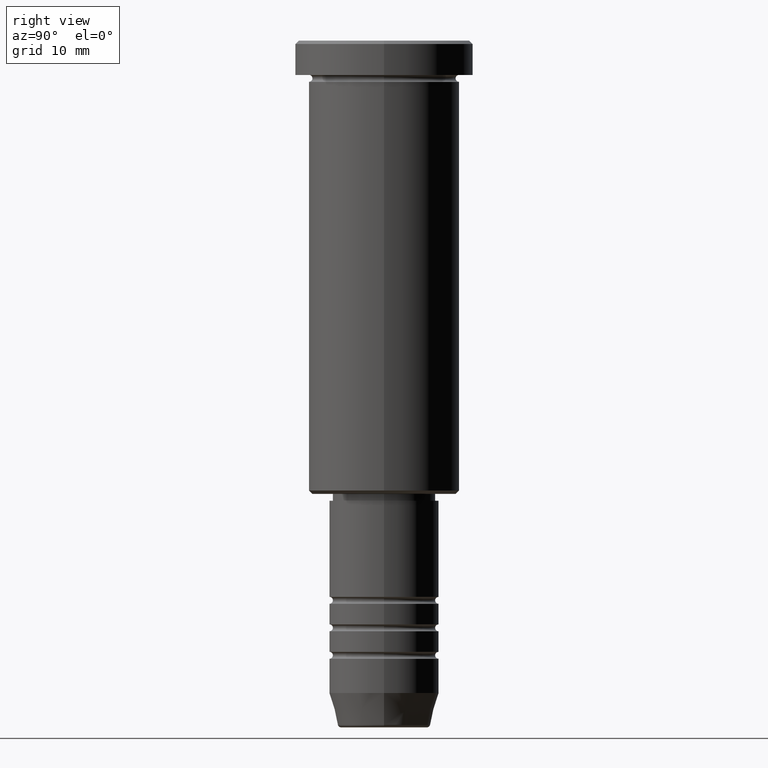
[diagram: clean part render]
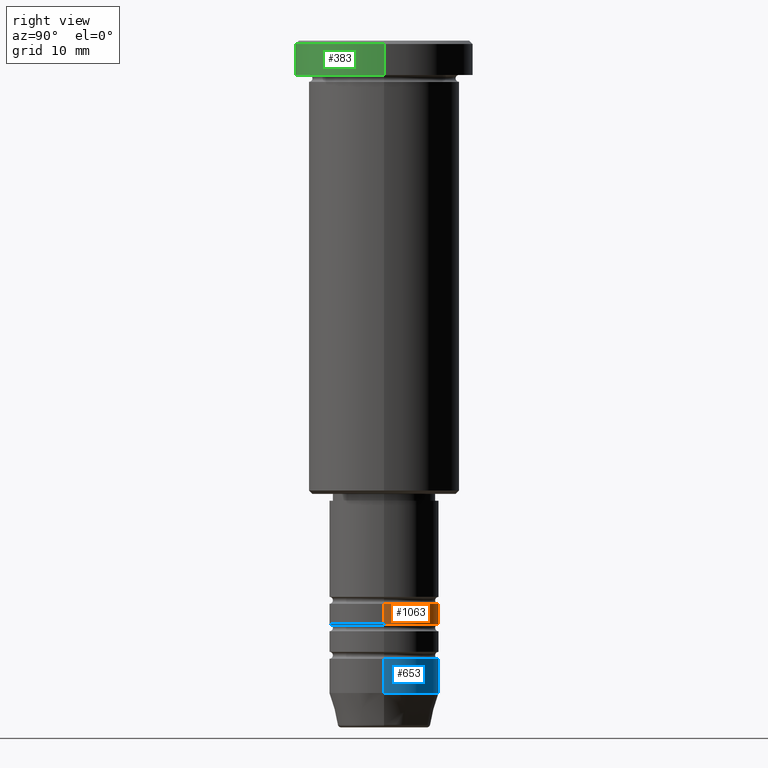
[diagram: same view with three faces highlighted in distinct colors, each labeled with its STEP entity id]
A machine part, right view with three faces highlighted in distinct colors.
Their STEP definitions:

[orange] entity #1063 — the highlighted cylindrical surface (partial cylindrical patch) has radius 8 mm, axis along (-0, -0, 1).
#14 = DIRECTION ( 'NONE',  ( -0.000000000000000000, -0.000000000000000000, 1.000000000000000000 ) ) ;
#24 = ORIENTED_EDGE ( 'NONE', *, *, #72, .T. ) ;
#72 = EDGE_CURVE ( 'NONE', #665, #563, #385, .T. ) ;
#132 = CIRCLE ( 'NONE', #788, 8.000000000000003553 ) ;
#140 = LINE ( 'NONE', #144, #1164 ) ;
#144 = CARTESIAN_POINT ( 'NONE',  ( 8.000000000000001776, 0.000000000000000000, 0.000000000000000000 ) ) ;
#153 = CIRCLE ( 'NONE', #554, 8.000000000000000000 ) ;
#273 = DIRECTION ( 'NONE',  ( -0.000000000000000000, -0.000000000000000000, 1.000000000000000000 ) ) ;
#297 = FACE_OUTER_BOUND ( 'NONE', #1144, .T. ) ;
#328 = CARTESIAN_POINT ( 'NONE',  ( -8.000000000000000000, 9.797174393178827630E-16, -81.99999999999998579 ) ) ;
#385 = LINE ( 'NONE', #562, #535 ) ;
#423 = CARTESIAN_POINT ( 'NONE',  ( 8.000000000000003553, 0.000000000000000000, -84.99999999999998579 ) ) ;
#477 = DIRECTION ( 'NONE',  ( -0.000000000000000000, -0.000000000000000000, 1.000000000000000000 ) ) ;
#492 = DIRECTION ( 'NONE',  ( 1.000000000000000000, 0.000000000000000000, 0.000000000000000000 ) ) ;
#498 = CARTESIAN_POINT ( 'NONE',  ( 0.000000000000000000, 0.000000000000000000, 0.000000000000000000 ) ) ;
#535 = VECTOR ( 'NONE', #273, 1000.000000000000000 ) ;
#554 = AXIS2_PLACEMENT_3D ( 'NONE', #618, #1162, #620 ) ;
#556 = VERTEX_POINT ( 'NONE', #1039 ) ;
#562 = CARTESIAN_POINT ( 'NONE',  ( -8.000000000000001776, 9.797174393178827630E-16, 0.000000000000000000 ) ) ;
#563 = VERTEX_POINT ( 'NONE', #328 ) ;
#597 = DIRECTION ( 'NONE',  ( -0.000000000000000000, -0.000000000000000000, 1.000000000000000000 ) ) ;
#598 = CARTESIAN_POINT ( 'NONE',  ( -8.000000000000003553, 9.797174393178829602E-16, -84.99999999999998579 ) ) ;
#618 = CARTESIAN_POINT ( 'NONE',  ( 0.000000000000000000, 0.000000000000000000, -81.99999999999998579 ) ) ;
#620 = DIRECTION ( 'NONE',  ( 1.000000000000000000, 0.000000000000000000, 0.000000000000000000 ) ) ;
#662 = ORIENTED_EDGE ( 'NONE', *, *, #982, .T. ) ;
#665 = VERTEX_POINT ( 'NONE', #598 ) ;
#674 = EDGE_CURVE ( 'NONE', #1180, #556, #140, .T. ) ;
#690 = ORIENTED_EDGE ( 'NONE', *, *, #674, .F. ) ;
#745 = DIRECTION ( 'NONE',  ( 1.000000000000000000, 0.000000000000000000, 0.000000000000000000 ) ) ;
#757 = EDGE_CURVE ( 'NONE', #556, #563, #153, .T. ) ;
#788 = AXIS2_PLACEMENT_3D ( 'NONE', #831, #14, #745 ) ;
#807 = ORIENTED_EDGE ( 'NONE', *, *, #757, .F. ) ;
#831 = CARTESIAN_POINT ( 'NONE',  ( 0.000000000000000000, 0.000000000000000000, -84.99999999999998579 ) ) ;
#949 = CYLINDRICAL_SURFACE ( 'NONE', #1041, 8.000000000000001776 ) ;
#982 = EDGE_CURVE ( 'NONE', #1180, #665, #132, .T. ) ;
#1039 = CARTESIAN_POINT ( 'NONE',  ( 8.000000000000000000, 0.000000000000000000, -81.99999999999998579 ) ) ;
#1041 = AXIS2_PLACEMENT_3D ( 'NONE', #498, #597, #492 ) ;
#1063 = ADVANCED_FACE ( 'NONE', ( #297 ), #949, .T. ) ;
#1144 = EDGE_LOOP ( 'NONE', ( #662, #24, #807, #690 ) ) ;
#1162 = DIRECTION ( 'NONE',  ( -0.000000000000000000, -0.000000000000000000, 1.000000000000000000 ) ) ;
#1164 = VECTOR ( 'NONE', #477, 1000.000000000000000 ) ;
#1180 = VERTEX_POINT ( 'NONE', #423 ) ;

[blue] entity #653 — the highlighted cylindrical surface (partial cylindrical patch) has radius 8 mm, axis along (-0, -0, 1).
#15 = CARTESIAN_POINT ( 'NONE',  ( 8.000000000000000000, 0.000000000000000000, -90.00000000000000000 ) ) ;
#23 = CIRCLE ( 'NONE', #820, 8.000000000000000000 ) ;
#42 = VERTEX_POINT ( 'NONE', #296 ) ;
#94 = VERTEX_POINT ( 'NONE', #121 ) ;
#121 = CARTESIAN_POINT ( 'NONE',  ( 8.000000000000000000, 0.000000000000000000, -95.00000000000000000 ) ) ;
#160 = VERTEX_POINT ( 'NONE', #485 ) ;
#188 = EDGE_CURVE ( 'NONE', #94, #160, #23, .T. ) ;
#216 = DIRECTION ( 'NONE',  ( -0.000000000000000000, -0.000000000000000000, 1.000000000000000000 ) ) ;
#229 = CARTESIAN_POINT ( 'NONE',  ( 0.000000000000000000, 0.000000000000000000, 0.000000000000000000 ) ) ;
#233 = DIRECTION ( 'NONE',  ( 1.000000000000000000, 0.000000000000000000, 0.000000000000000000 ) ) ;
#266 = ORIENTED_EDGE ( 'NONE', *, *, #927, .F. ) ;
#285 = AXIS2_PLACEMENT_3D ( 'NONE', #649, #1177, #369 ) ;
#296 = CARTESIAN_POINT ( 'NONE',  ( -8.000000000000000000, 9.797174393178825657E-16, -90.00000000000000000 ) ) ;
#326 = AXIS2_PLACEMENT_3D ( 'NONE', #229, #1147, #233 ) ;
#344 = VERTEX_POINT ( 'NONE', #15 ) ;
#369 = DIRECTION ( 'NONE',  ( 1.000000000000000000, 0.000000000000000000, 0.000000000000000000 ) ) ;
#412 = FACE_OUTER_BOUND ( 'NONE', #1129, .T. ) ;
#485 = CARTESIAN_POINT ( 'NONE',  ( -8.000000000000000000, 9.797174393178825657E-16, -95.00000000000000000 ) ) ;
#497 = DIRECTION ( 'NONE',  ( 1.000000000000000000, 0.000000000000000000, 0.000000000000000000 ) ) ;
#503 = LINE ( 'NONE', #876, #577 ) ;
#577 = VECTOR ( 'NONE', #657, 1000.000000000000000 ) ;
#609 = DIRECTION ( 'NONE',  ( -0.000000000000000000, -0.000000000000000000, 1.000000000000000000 ) ) ;
#623 = LINE ( 'NONE', #702, #1064 ) ;
#649 = CARTESIAN_POINT ( 'NONE',  ( 0.000000000000000000, 0.000000000000000000, -90.00000000000000000 ) ) ;
#653 = ADVANCED_FACE ( 'NONE', ( #412 ), #1054, .T. ) ;
#657 = DIRECTION ( 'NONE',  ( -0.000000000000000000, -0.000000000000000000, 1.000000000000000000 ) ) ;
#692 = EDGE_CURVE ( 'NONE', #160, #42, #503, .T. ) ;
#702 = CARTESIAN_POINT ( 'NONE',  ( 8.000000000000000000, 0.000000000000000000, 0.000000000000000000 ) ) ;
#708 = CIRCLE ( 'NONE', #285, 8.000000000000000000 ) ;
#820 = AXIS2_PLACEMENT_3D ( 'NONE', #1034, #216, #497 ) ;
#876 = CARTESIAN_POINT ( 'NONE',  ( -8.000000000000000000, 9.797174393178825657E-16, 0.000000000000000000 ) ) ;
#927 = EDGE_CURVE ( 'NONE', #344, #42, #708, .T. ) ;
#961 = ORIENTED_EDGE ( 'NONE', *, *, #692, .T. ) ;
#967 = ORIENTED_EDGE ( 'NONE', *, *, #188, .T. ) ;
#1001 = ORIENTED_EDGE ( 'NONE', *, *, #1165, .F. ) ;
#1034 = CARTESIAN_POINT ( 'NONE',  ( 0.000000000000000000, 0.000000000000000000, -95.00000000000000000 ) ) ;
#1054 = CYLINDRICAL_SURFACE ( 'NONE', #326, 8.000000000000000000 ) ;
#1064 = VECTOR ( 'NONE', #609, 1000.000000000000000 ) ;
#1129 = EDGE_LOOP ( 'NONE', ( #967, #961, #266, #1001 ) ) ;
#1147 = DIRECTION ( 'NONE',  ( -0.000000000000000000, -0.000000000000000000, 1.000000000000000000 ) ) ;
#1165 = EDGE_CURVE ( 'NONE', #94, #344, #623, .T. ) ;
#1177 = DIRECTION ( 'NONE',  ( -0.000000000000000000, -0.000000000000000000, 1.000000000000000000 ) ) ;

[green] entity #383 — the highlighted cylindrical surface (partial cylindrical patch) has radius 13 mm, axis along (-0, -0, 1).
#7 = CYLINDRICAL_SURFACE ( 'NONE', #884, 13.00000000000000000 ) ;
#33 = EDGE_LOOP ( 'NONE', ( #572, #584, #34, #821 ) ) ;
#34 = ORIENTED_EDGE ( 'NONE', *, *, #156, .T. ) ;
#104 = LINE ( 'NONE', #766, #203 ) ;
#120 = VERTEX_POINT ( 'NONE', #733 ) ;
#125 = CARTESIAN_POINT ( 'NONE',  ( 0.000000000000000000, 0.000000000000000000, -0.5000000000000073275 ) ) ;
#156 = EDGE_CURVE ( 'NONE', #676, #1169, #104, .T. ) ;
#203 = VECTOR ( 'NONE', #579, 1000.000000000000000 ) ;
#256 = CARTESIAN_POINT ( 'NONE',  ( 0.000000000000000000, 0.000000000000000000, 0.000000000000000000 ) ) ;
#258 = FACE_OUTER_BOUND ( 'NONE', #33, .T. ) ;
#267 = DIRECTION ( 'NONE',  ( -0.000000000000000000, -0.000000000000000000, 1.000000000000000000 ) ) ;
#268 = DIRECTION ( 'NONE',  ( -0.000000000000000000, -0.000000000000000000, 1.000000000000000000 ) ) ;
#383 = ADVANCED_FACE ( 'NONE', ( #258 ), #7, .T. ) ;
#522 = EDGE_CURVE ( 'NONE', #120, #857, #1095, .T. ) ;
#523 = CARTESIAN_POINT ( 'NONE',  ( -13.00000000000000000, 1.592040838891559095E-15, -0.5000000000000073275 ) ) ;
#572 = ORIENTED_EDGE ( 'NONE', *, *, #522, .F. ) ;
#579 = DIRECTION ( 'NONE',  ( -0.000000000000000000, -0.000000000000000000, 1.000000000000000000 ) ) ;
#584 = ORIENTED_EDGE ( 'NONE', *, *, #819, .T. ) ;
#588 = AXIS2_PLACEMENT_3D ( 'NONE', #125, #1139, #677 ) ;
#629 = CARTESIAN_POINT ( 'NONE',  ( 0.000000000000000000, 0.000000000000000000, -5.000000000000000000 ) ) ;
#676 = VERTEX_POINT ( 'NONE', #775 ) ;
#677 = DIRECTION ( 'NONE',  ( 1.000000000000000000, 0.000000000000000000, 0.000000000000000000 ) ) ;
#724 = DIRECTION ( 'NONE',  ( 1.000000000000000000, 0.000000000000000000, 0.000000000000000000 ) ) ;
#728 = AXIS2_PLACEMENT_3D ( 'NONE', #629, #795, #891 ) ;
#733 = CARTESIAN_POINT ( 'NONE',  ( -13.00000000000000000, 1.592040838891559095E-15, -5.000000000000000000 ) ) ;
#766 = CARTESIAN_POINT ( 'NONE',  ( 13.00000000000000000, 0.000000000000000000, 0.000000000000000000 ) ) ;
#775 = CARTESIAN_POINT ( 'NONE',  ( 13.00000000000000000, 0.000000000000000000, -5.000000000000000000 ) ) ;
#795 = DIRECTION ( 'NONE',  ( -0.000000000000000000, -0.000000000000000000, 1.000000000000000000 ) ) ;
#810 = CIRCLE ( 'NONE', #588, 13.00000000000000000 ) ;
#819 = EDGE_CURVE ( 'NONE', #120, #676, #863, .T. ) ;
#821 = ORIENTED_EDGE ( 'NONE', *, *, #1115, .T. ) ;
#857 = VERTEX_POINT ( 'NONE', #523 ) ;
#863 = CIRCLE ( 'NONE', #728, 13.00000000000000000 ) ;
#884 = AXIS2_PLACEMENT_3D ( 'NONE', #256, #268, #724 ) ;
#891 = DIRECTION ( 'NONE',  ( 1.000000000000000000, 0.000000000000000000, 0.000000000000000000 ) ) ;
#1060 = CARTESIAN_POINT ( 'NONE',  ( 13.00000000000000000, 0.000000000000000000, -0.5000000000000073275 ) ) ;
#1079 = CARTESIAN_POINT ( 'NONE',  ( -13.00000000000000000, 1.592040838891559095E-15, 0.000000000000000000 ) ) ;
#1095 = LINE ( 'NONE', #1079, #1125 ) ;
#1115 = EDGE_CURVE ( 'NONE', #1169, #857, #810, .T. ) ;
#1125 = VECTOR ( 'NONE', #267, 1000.000000000000000 ) ;
#1139 = DIRECTION ( 'NONE',  ( 0.000000000000000000, 0.000000000000000000, -1.000000000000000000 ) ) ;
#1169 = VERTEX_POINT ( 'NONE', #1060 ) ;